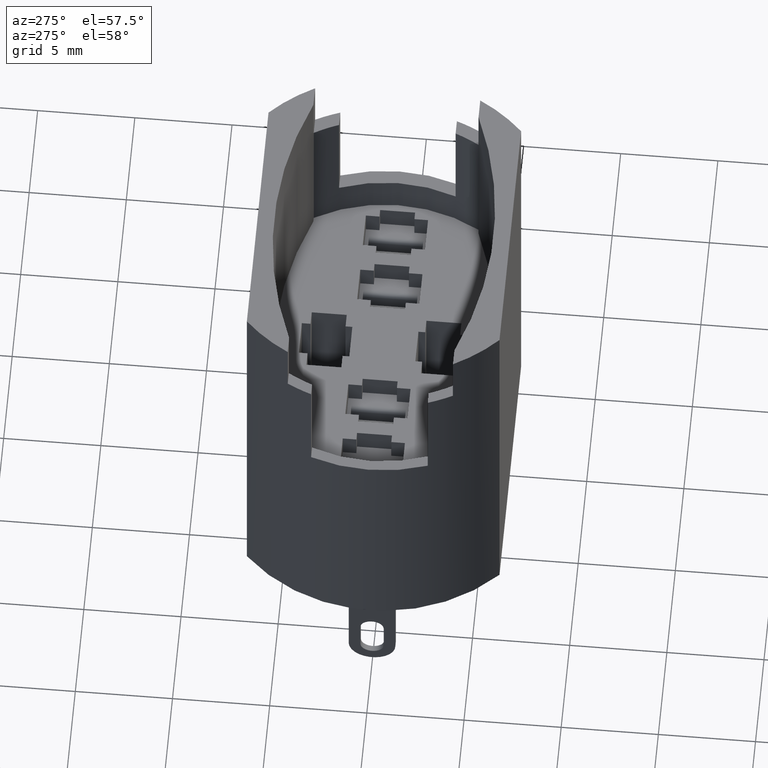
[diagram: clean part render]
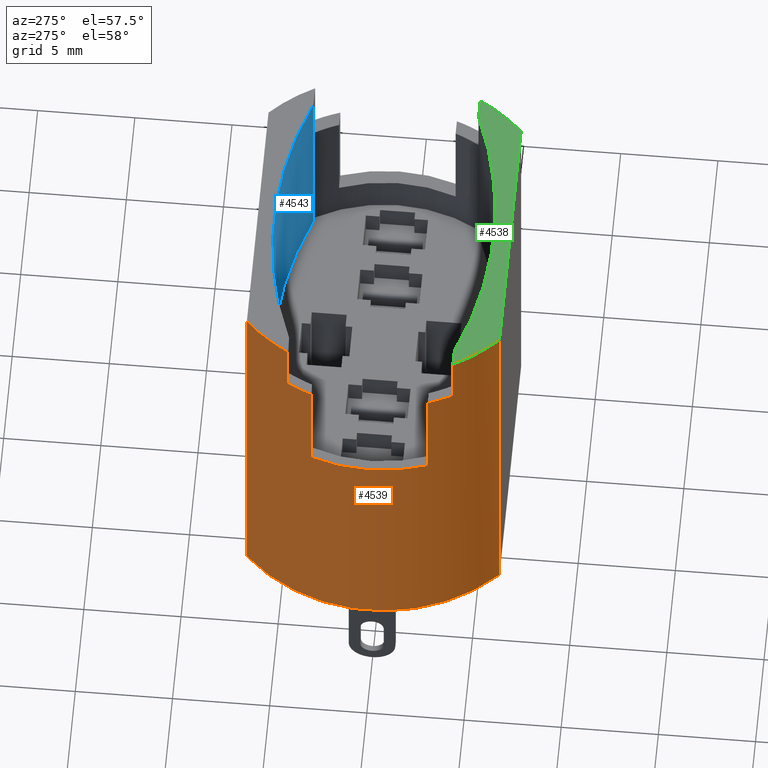
[diagram: same view with three faces highlighted in distinct colors, each labeled with its STEP entity id]
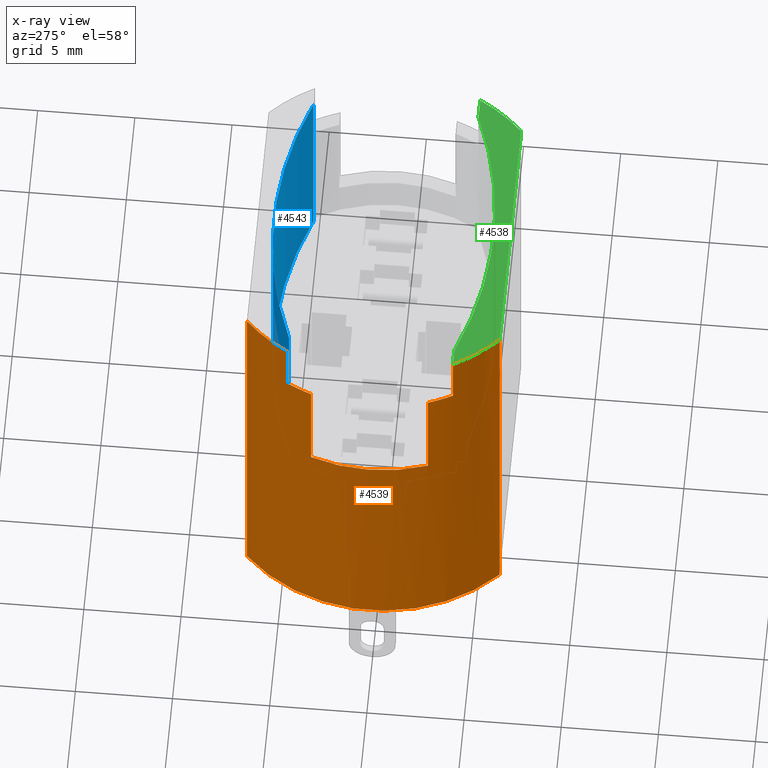
[diagram: x-ray of the same camera — body ghosted, the three highlighted faces saturated]
A machine part, auxiliary view with three faces highlighted in distinct colors.
The next image is the same camera in x-ray (body ghosted, the three faces saturated) — at least one of them is partly hidden behind the body in this view.
Their STEP definitions:

[orange] entity #4539 — the highlighted cylindrical surface (partial cylindrical patch) has radius 9.1 mm, axis along (0, 0, -1).
#68=CYLINDRICAL_SURFACE('',#4843,9.1);
#138=CIRCLE('',#4817,9.1);
#142=CIRCLE('',#4823,9.1);
#146=CIRCLE('',#4830,9.1);
#154=CIRCLE('',#4842,9.1);
#155=CIRCLE('',#4844,9.1);
#156=CIRCLE('',#4845,9.1);
#375=FACE_OUTER_BOUND('',#614,.T.);
#614=EDGE_LOOP('',(#3883,#3884,#3885,#3886,#3887,#3888,#3889,#3890,#3891,
#3892,#3893,#3894));
#1165=LINE('',#7220,#1737);
#1177=LINE('',#7261,#1749);
#1192=LINE('',#7308,#1764);
#1193=LINE('',#7310,#1765);
#1194=LINE('',#7314,#1766);
#1195=LINE('',#7317,#1767);
#1737=VECTOR('',#5895,10.);
#1749=VECTOR('',#5935,10.);
#1764=VECTOR('',#5980,10.);
#1765=VECTOR('',#5981,10.);
#1766=VECTOR('',#5984,10.);
#1767=VECTOR('',#5987,10.);
#2161=VERTEX_POINT('',#7218);
#2162=VERTEX_POINT('',#7219);
#2169=VERTEX_POINT('',#7236);
#2173=VERTEX_POINT('',#7248);
#2177=VERTEX_POINT('',#7260);
#2179=VERTEX_POINT('',#7266);
#2193=VERTEX_POINT('',#7302);
#2194=VERTEX_POINT('',#7304);
#2195=VERTEX_POINT('',#7309);
#2196=VERTEX_POINT('',#7311);
#2197=VERTEX_POINT('',#7313);
#2198=VERTEX_POINT('',#7315);
#2773=EDGE_CURVE('',#2161,#2162,#1165,.T.);
#2781=EDGE_CURVE('',#2169,#2161,#138,.T.);
#2787=EDGE_CURVE('',#2162,#2173,#142,.T.);
#2793=EDGE_CURVE('',#2173,#2177,#1177,.T.);
#2796=EDGE_CURVE('',#2177,#2179,#146,.T.);
#2815=EDGE_CURVE('',#2193,#2194,#154,.T.);
#2817=EDGE_CURVE('',#2193,#2169,#1192,.T.);
#2818=EDGE_CURVE('',#2179,#2195,#1193,.T.);
#2819=EDGE_CURVE('',#2196,#2195,#155,.T.);
#2820=EDGE_CURVE('',#2196,#2197,#1194,.T.);
#2821=EDGE_CURVE('',#2197,#2198,#156,.T.);
#2822=EDGE_CURVE('',#2194,#2198,#1195,.T.);
#3883=ORIENTED_EDGE('',*,*,#2817,.T.);
#3884=ORIENTED_EDGE('',*,*,#2781,.T.);
#3885=ORIENTED_EDGE('',*,*,#2773,.T.);
#3886=ORIENTED_EDGE('',*,*,#2787,.T.);
#3887=ORIENTED_EDGE('',*,*,#2793,.T.);
#3888=ORIENTED_EDGE('',*,*,#2796,.T.);
#3889=ORIENTED_EDGE('',*,*,#2818,.T.);
#3890=ORIENTED_EDGE('',*,*,#2819,.F.);
#3891=ORIENTED_EDGE('',*,*,#2820,.T.);
#3892=ORIENTED_EDGE('',*,*,#2821,.T.);
#3893=ORIENTED_EDGE('',*,*,#2822,.F.);
#3894=ORIENTED_EDGE('',*,*,#2815,.F.);
#4539=ADVANCED_FACE('',(#375),#68,.T.);
#4817=AXIS2_PLACEMENT_3D('',#7237,#5907,#5908);
#4823=AXIS2_PLACEMENT_3D('',#7249,#5921,#5922);
#4830=AXIS2_PLACEMENT_3D('',#7267,#5940,#5941);
#4842=AXIS2_PLACEMENT_3D('',#7305,#5975,#5976);
#4843=AXIS2_PLACEMENT_3D('',#7307,#5978,#5979);
#4844=AXIS2_PLACEMENT_3D('',#7312,#5982,#5983);
#4845=AXIS2_PLACEMENT_3D('',#7316,#5985,#5986);
#5895=DIRECTION('',(2.01228126592556E-16,3.88578058618806E-16,-1.));
#5907=DIRECTION('center_axis',(2.01228126592556E-16,3.88578058618806E-16,
-1.));
#5908=DIRECTION('ref_axis',(0.699854212223764,0.714285714285716,4.18386108169987E-16));
#5921=DIRECTION('center_axis',(2.01228126592556E-16,3.88578058618806E-16,
-1.));
#5922=DIRECTION('ref_axis',(0.699854212223764,0.714285714285716,4.18386108169987E-16));
#5935=DIRECTION('',(-2.01228126592556E-16,-3.88578058618806E-16,1.));
#5940=DIRECTION('center_axis',(2.01228126592556E-16,3.88578058618806E-16,
-1.));
#5941=DIRECTION('ref_axis',(0.699854212223764,0.714285714285716,4.18386108169987E-16));
#5975=DIRECTION('center_axis',(-2.01228126592556E-16,-3.88578058618806E-16,
1.));
#5976=DIRECTION('ref_axis',(0.699854212223764,0.714285714285716,4.18386108169987E-16));
#5978=DIRECTION('center_axis',(2.01228126592556E-16,3.88578058618806E-16,
-1.));
#5979=DIRECTION('ref_axis',(0.699854212223764,0.714285714285716,4.18386108169987E-16));
#5980=DIRECTION('',(2.01228126592556E-16,3.88578058618806E-16,-1.));
#5981=DIRECTION('',(-2.01228126592556E-16,-3.88578058618806E-16,1.));
#5982=DIRECTION('center_axis',(-2.01228126592556E-16,-3.88578058618806E-16,
1.));
#5983=DIRECTION('ref_axis',(0.699854212223764,0.714285714285716,4.18386108169987E-16));
#5984=DIRECTION('',(2.01228126592556E-16,3.88578058618806E-16,-1.));
#5985=DIRECTION('center_axis',(-2.01228126592556E-16,-3.88578058618806E-16,
1.));
#5986=DIRECTION('ref_axis',(0.699854212223764,0.714285714285716,4.18386108169987E-16));
#5987=DIRECTION('',(2.01228126592556E-16,3.88578058618806E-16,-1.));
#7218=CARTESIAN_POINT('',(-8.50377357546161,-3.00000000000003,19.4));
#7219=CARTESIAN_POINT('',(-8.50377357546161,-3.00000000000002,13.4));
#7220=CARTESIAN_POINT('',(-8.50377357546161,-3.00000000000003,22.4));
#7236=CARTESIAN_POINT('',(-7.95908205773885,-4.25000000000002,19.4));
#7237=CARTESIAN_POINT('Origin',(0.0875010680357041,-7.35113289072591E-15,
19.4));
#7248=CARTESIAN_POINT('',(-8.50377357546162,2.99999999999998,13.4));
#7249=CARTESIAN_POINT('Origin',(0.0875010680357053,-5.01966453901307E-15,
13.4));
#7260=CARTESIAN_POINT('',(-8.50377357546162,2.99999999999997,19.4));
#7261=CARTESIAN_POINT('',(-8.50377357546162,2.99999999999997,22.4));
#7266=CARTESIAN_POINT('',(-7.95908205773887,4.24999999999998,19.4));
#7267=CARTESIAN_POINT('Origin',(0.0875010680357041,-7.35113289072591E-15,
19.4));
#7302=CARTESIAN_POINT('',(-7.95908205773885,-4.25000000000003,22.4));
#7304=CARTESIAN_POINT('',(-6.28117226320055,-6.50000000000002,22.4));
#7305=CARTESIAN_POINT('Origin',(0.0875010680357035,-8.51686706658232E-15,
22.4));
#7307=CARTESIAN_POINT('Origin',(0.0875010680357035,-8.51686706658232E-15,
22.4));
#7308=CARTESIAN_POINT('',(-7.95908205773885,-4.25000000000003,22.4));
#7309=CARTESIAN_POINT('',(-7.95908205773887,4.24999999999997,22.4));
#7310=CARTESIAN_POINT('',(-7.95908205773887,4.24999999999997,22.4));
#7311=CARTESIAN_POINT('',(-6.28117226320057,6.49999999999998,22.4));
#7312=CARTESIAN_POINT('Origin',(0.0875010680357035,-8.51686706658232E-15,
22.4));
#7313=CARTESIAN_POINT('',(-6.28117226320057,6.49999999999999,5.70270095219389E-15));
#7314=CARTESIAN_POINT('',(-6.28117226320057,6.49999999999998,22.4));
#7315=CARTESIAN_POINT('',(-6.28117226320054,-6.50000000000001,6.51186190149414E-16));
#7316=CARTESIAN_POINT('Origin',(0.087501068035708,1.87281446478928E-16,
4.4584997744963E-15));
#7317=CARTESIAN_POINT('',(-6.28117226320055,-6.50000000000002,22.4));

[blue] entity #4543 — the highlighted cylindrical surface (partial cylindrical patch) has radius 18.7965 mm, axis along (0, 0, -1).
#70=CYLINDRICAL_SURFACE('',#4850,18.7964950393163);
#158=CIRCLE('',#4851,18.7964950393163);
#159=CIRCLE('',#4852,18.7964950393163);
#379=FACE_OUTER_BOUND('',#618,.T.);
#618=EDGE_LOOP('',(#3915,#3916,#3917,#3918));
#1200=LINE('',#7331,#1772);
#1203=LINE('',#7338,#1775);
#1772=VECTOR('',#6000,10.);
#1775=VECTOR('',#6007,10.);
#2202=VERTEX_POINT('',#7329);
#2203=VERTEX_POINT('',#7330);
#2204=VERTEX_POINT('',#7335);
#2205=VERTEX_POINT('',#7337);
#2828=EDGE_CURVE('',#2202,#2203,#1200,.T.);
#2831=EDGE_CURVE('',#2204,#2202,#158,.T.);
#2832=EDGE_CURVE('',#2204,#2205,#1203,.T.);
#2833=EDGE_CURVE('',#2205,#2203,#159,.T.);
#3915=ORIENTED_EDGE('',*,*,#2831,.F.);
#3916=ORIENTED_EDGE('',*,*,#2832,.T.);
#3917=ORIENTED_EDGE('',*,*,#2833,.T.);
#3918=ORIENTED_EDGE('',*,*,#2828,.F.);
#4543=ADVANCED_FACE('',(#379),#70,.F.);
#4850=AXIS2_PLACEMENT_3D('',#7334,#6003,#6004);
#4851=AXIS2_PLACEMENT_3D('',#7336,#6005,#6006);
#4852=AXIS2_PLACEMENT_3D('',#7339,#6008,#6009);
#6000=DIRECTION('',(2.01228126592556E-16,3.88578058618806E-16,-1.));
#6003=DIRECTION('center_axis',(2.01228126592556E-16,3.88578058618806E-16,
-1.));
#6004=DIRECTION('ref_axis',(-0.378703549166827,0.925518028915941,2.83430193160068E-16));
#6005=DIRECTION('center_axis',(2.01228126592556E-16,3.88578058618806E-16,
-1.));
#6006=DIRECTION('ref_axis',(-0.378703549166827,0.925518028915941,2.83430193160068E-16));
#6007=DIRECTION('',(2.01228126592556E-16,3.88578058618806E-16,-1.));
#6008=DIRECTION('center_axis',(2.01228126592556E-16,3.88578058618806E-16,
-1.));
#6009=DIRECTION('ref_axis',(-0.378703549166827,0.925518028915941,2.83430193160068E-16));
#7329=CARTESIAN_POINT('',(7.1182993832857,4.25000000000001,22.4));
#7330=CARTESIAN_POINT('',(7.1182993832857,4.25000000000001,11.3));
#7331=CARTESIAN_POINT('',(7.1182993832857,4.25000000000001,22.4));
#7334=CARTESIAN_POINT('Origin',(2.74054447172485E-14,-13.1464950393163,
22.4));
#7335=CARTESIAN_POINT('',(-7.11829938328572,4.24999999999998,22.4));
#7336=CARTESIAN_POINT('Origin',(2.74054447172485E-14,-13.1464950393163,
22.4));
#7337=CARTESIAN_POINT('',(-7.11829938328572,4.24999999999998,11.3));
#7338=CARTESIAN_POINT('',(-7.11829938328572,4.24999999999998,22.4));
#7339=CARTESIAN_POINT('Origin',(2.96390769224259E-14,-13.1464950393163,
11.3));

[green] entity #4538 — the highlighted planar face has unit normal (0, 0, -1).
#150=CIRCLE('',#4837,9.1);
#153=CIRCLE('',#4841,18.7964950393163);
#154=CIRCLE('',#4842,9.1);
#374=FACE_OUTER_BOUND('',#613,.T.);
#613=EDGE_LOOP('',(#3877,#3878,#3879,#3880,#3881,#3882));
#1189=LINE('',#7299,#1761);
#1190=LINE('',#7303,#1762);
#1191=LINE('',#7306,#1763);
#1761=VECTOR('',#5971,10.);
#1762=VECTOR('',#5974,10.);
#1763=VECTOR('',#5977,10.);
#2186=VERTEX_POINT('',#7286);
#2187=VERTEX_POINT('',#7288);
#2191=VERTEX_POINT('',#7298);
#2192=VERTEX_POINT('',#7300);
#2193=VERTEX_POINT('',#7302);
#2194=VERTEX_POINT('',#7304);
#2807=EDGE_CURVE('',#2187,#2186,#150,.T.);
#2812=EDGE_CURVE('',#2186,#2191,#1189,.T.);
#2813=EDGE_CURVE('',#2191,#2192,#153,.T.);
#2814=EDGE_CURVE('',#2192,#2193,#1190,.T.);
#2815=EDGE_CURVE('',#2193,#2194,#154,.T.);
#2816=EDGE_CURVE('',#2194,#2187,#1191,.T.);
#3877=ORIENTED_EDGE('',*,*,#2812,.T.);
#3878=ORIENTED_EDGE('',*,*,#2813,.T.);
#3879=ORIENTED_EDGE('',*,*,#2814,.T.);
#3880=ORIENTED_EDGE('',*,*,#2815,.T.);
#3881=ORIENTED_EDGE('',*,*,#2816,.T.);
#3882=ORIENTED_EDGE('',*,*,#2807,.T.);
#4308=PLANE('',#4840);
#4538=ADVANCED_FACE('',(#374),#4308,.F.);
#4837=AXIS2_PLACEMENT_3D('',#7289,#5961,#5962);
#4840=AXIS2_PLACEMENT_3D('',#7297,#5969,#5970);
#4841=AXIS2_PLACEMENT_3D('',#7301,#5972,#5973);
#4842=AXIS2_PLACEMENT_3D('',#7305,#5975,#5976);
#5961=DIRECTION('center_axis',(-2.01228126592556E-16,-3.88578058618806E-16,
1.));
#5962=DIRECTION('ref_axis',(-0.699854212223764,-0.714285714285716,-4.18386108169987E-16));
#5969=DIRECTION('center_axis',(2.01228126592556E-16,3.88578058618806E-16,
-1.));
#5970=DIRECTION('ref_axis',(1.,2.14033326316087E-15,2.01228126592556E-16));
#5971=DIRECTION('',(-1.,4.53223659430037E-16,-2.01228126592555E-16));
#5972=DIRECTION('center_axis',(2.01228126592556E-16,3.88578058618806E-16,
-1.));
#5973=DIRECTION('ref_axis',(0.378703549166827,-0.925518028915941,-2.83430193160068E-16));
#5974=DIRECTION('',(-1.,-2.14033326316087E-15,-2.01228126592556E-16));
#5975=DIRECTION('center_axis',(-2.01228126592556E-16,-3.88578058618806E-16,
1.));
#5976=DIRECTION('ref_axis',(0.699854212223764,0.714285714285716,4.18386108169987E-16));
#5977=DIRECTION('',(1.,2.05317044549994E-15,2.01228126592556E-16));
#7286=CARTESIAN_POINT('',(8.13408419381028,-4.24999999999999,22.4));
#7288=CARTESIAN_POINT('',(6.45617439927198,-6.5,22.4));
#7289=CARTESIAN_POINT('Origin',(0.0875010680357035,-8.51686706658232E-15,
22.4));
#7297=CARTESIAN_POINT('Origin',(0.0875010680357033,-9.02810721508936E-15,
22.4));
#7298=CARTESIAN_POINT('',(7.11829938328571,-4.24999999999999,22.4));
#7299=CARTESIAN_POINT('',(3.70991764013836,-4.24999999999999,22.4));
#7300=CARTESIAN_POINT('',(-7.11829938328571,-4.25000000000002,22.4));
#7301=CARTESIAN_POINT('Origin',(-3.20902791499888E-14,13.1464950393163,
22.4));
#7302=CARTESIAN_POINT('',(-7.95908205773885,-4.25000000000003,22.4));
#7303=CARTESIAN_POINT('',(0.0437505340178585,-4.25000000000001,22.4));
#7304=CARTESIAN_POINT('',(-6.28117226320055,-6.50000000000002,22.4));
#7305=CARTESIAN_POINT('Origin',(0.0875010680357035,-8.51686706658232E-15,
22.4));
#7306=CARTESIAN_POINT('',(-6.28117226320055,-6.50000000000002,22.4));